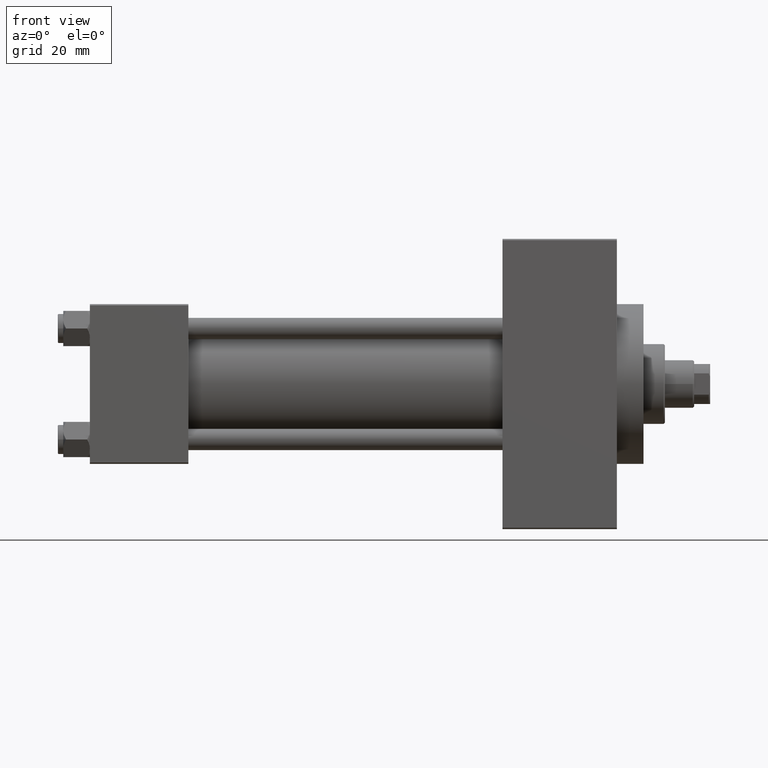
[diagram: clean part render]
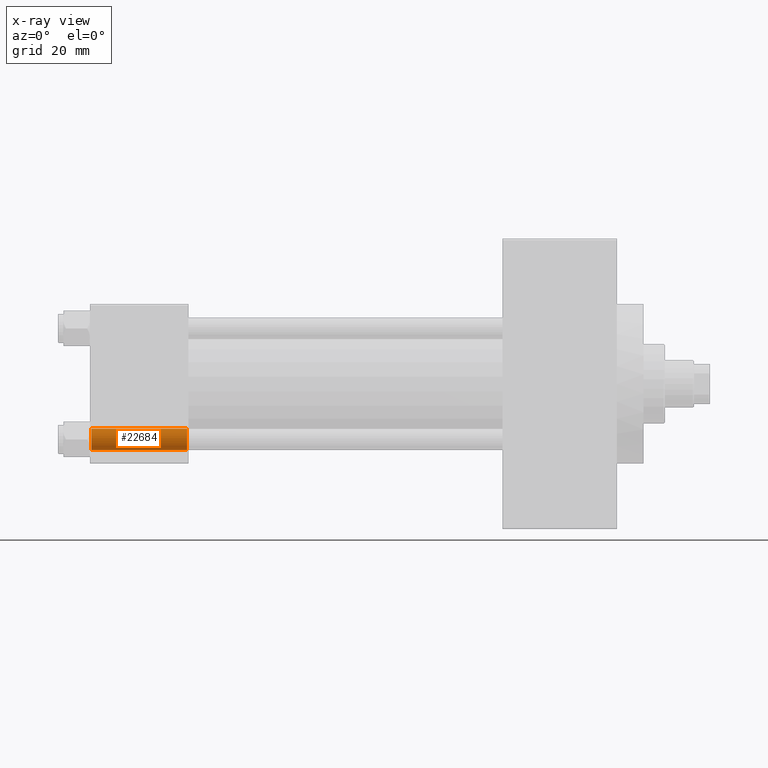
[diagram: x-ray — body ghosted, one internal face saturated and labeled with its STEP entity id]
A machine part, front view, then the same camera in x-ray: the body is ghosted and one INTERNAL B-rep face — a face not visible from any outside direction — is saturated and labeled: STEP entity #22684.
In plain terms, the highlighted cylindrical surface (edge-blend (fillet) strip) has radius 4 mm, axis along (-1, -0, -0).
Its self-contained STEP definition (entity closure, byte-faithful):
#116 = CIRCLE ( 'NONE', #36876, 4.000000000000000000 ) ;
#176 = CARTESIAN_POINT ( 'NONE',  ( 37.00000000000000711, 20.84999999999999787, -24.85000000000000142 ) ) ;
#213 = VERTEX_POINT ( 'NONE', #22032 ) ;
#2224 = CARTESIAN_POINT ( 'NONE',  ( 0.5000000000000213163, 20.84999999999999787, -20.85000000000000142 ) ) ;
#3181 = DIRECTION ( 'NONE',  ( 0.000000000000000000, 0.000000000000000000, 1.000000000000000000 ) ) ;
#3411 = VECTOR ( 'NONE', #11419, 1000.000000000000000 ) ;
#4527 = VERTEX_POINT ( 'NONE', #5404 ) ;
#5404 = CARTESIAN_POINT ( 'NONE',  ( 0.5000000000000213163, 20.84999999999999787, -24.85000000000000142 ) ) ;
#7404 = EDGE_CURVE ( 'NONE', #4527, #32562, #116, .T. ) ;
#7495 = CARTESIAN_POINT ( 'NONE',  ( 36.49999999999997868, 20.84999999999999787, -24.85000000000000142 ) ) ;
#8927 = EDGE_CURVE ( 'NONE', #213, #17411, #22355, .T. ) ;
#9321 = CARTESIAN_POINT ( 'NONE',  ( 0.5000000000000213163, 20.84999999999999787, -16.85000000000000142 ) ) ;
#9437 = FACE_OUTER_BOUND ( 'NONE', #34519, .T. ) ;
#11419 = DIRECTION ( 'NONE',  ( -1.000000000000000000, -0.000000000000000000, -0.000000000000000000 ) ) ;
#13380 = AXIS2_PLACEMENT_3D ( 'NONE', #35111, #34639, #24086 ) ;
#13466 = DIRECTION ( 'NONE',  ( -1.000000000000000000, -0.000000000000000000, -0.000000000000000000 ) ) ;
#13711 = VECTOR ( 'NONE', #13466, 1000.000000000000000 ) ;
#14631 = EDGE_CURVE ( 'NONE', #17411, #4527, #25359, .T. ) ;
#15204 = ORIENTED_EDGE ( 'NONE', *, *, #8927, .T. ) ;
#16583 = CARTESIAN_POINT ( 'NONE',  ( 37.00000000000000711, 20.84999999999999787, -16.85000000000000142 ) ) ;
#17411 = VERTEX_POINT ( 'NONE', #7495 ) ;
#18597 = DIRECTION ( 'NONE',  ( 0.000000000000000000, 0.000000000000000000, 1.000000000000000000 ) ) ;
#21140 = LINE ( 'NONE', #16583, #13711 ) ;
#22032 = CARTESIAN_POINT ( 'NONE',  ( 36.49999999999997868, 20.84999999999999787, -16.85000000000000142 ) ) ;
#22355 = CIRCLE ( 'NONE', #32311, 4.000000000000000000 ) ;
#22684 = ADVANCED_FACE ( 'NONE', ( #9437 ), #28387, .F. ) ;
#24086 = DIRECTION ( 'NONE',  ( 0.000000000000000000, 0.000000000000000000, 1.000000000000000000 ) ) ;
#24531 = DIRECTION ( 'NONE',  ( -1.000000000000000000, 0.000000000000000000, 0.000000000000000000 ) ) ;
#25359 = LINE ( 'NONE', #176, #3411 ) ;
#28387 = CYLINDRICAL_SURFACE ( 'NONE', #13380, 4.000000000000000000 ) ;
#29623 = DIRECTION ( 'NONE',  ( 1.000000000000000000, -0.000000000000000000, -0.000000000000000000 ) ) ;
#32311 = AXIS2_PLACEMENT_3D ( 'NONE', #44969, #29623, #18597 ) ;
#32562 = VERTEX_POINT ( 'NONE', #9321 ) ;
#33914 = ORIENTED_EDGE ( 'NONE', *, *, #7404, .T. ) ;
#34519 = EDGE_LOOP ( 'NONE', ( #15204, #42322, #33914, #45648 ) ) ;
#34639 = DIRECTION ( 'NONE',  ( -1.000000000000000000, -0.000000000000000000, -0.000000000000000000 ) ) ;
#35111 = CARTESIAN_POINT ( 'NONE',  ( 37.00000000000000711, 20.84999999999999787, -20.85000000000000142 ) ) ;
#36462 = EDGE_CURVE ( 'NONE', #213, #32562, #21140, .T. ) ;
#36876 = AXIS2_PLACEMENT_3D ( 'NONE', #2224, #24531, #3181 ) ;
#42322 = ORIENTED_EDGE ( 'NONE', *, *, #14631, .T. ) ;
#44969 = CARTESIAN_POINT ( 'NONE',  ( 36.49999999999997868, 20.84999999999999787, -20.85000000000000142 ) ) ;
#45648 = ORIENTED_EDGE ( 'NONE', *, *, #36462, .F. ) ;